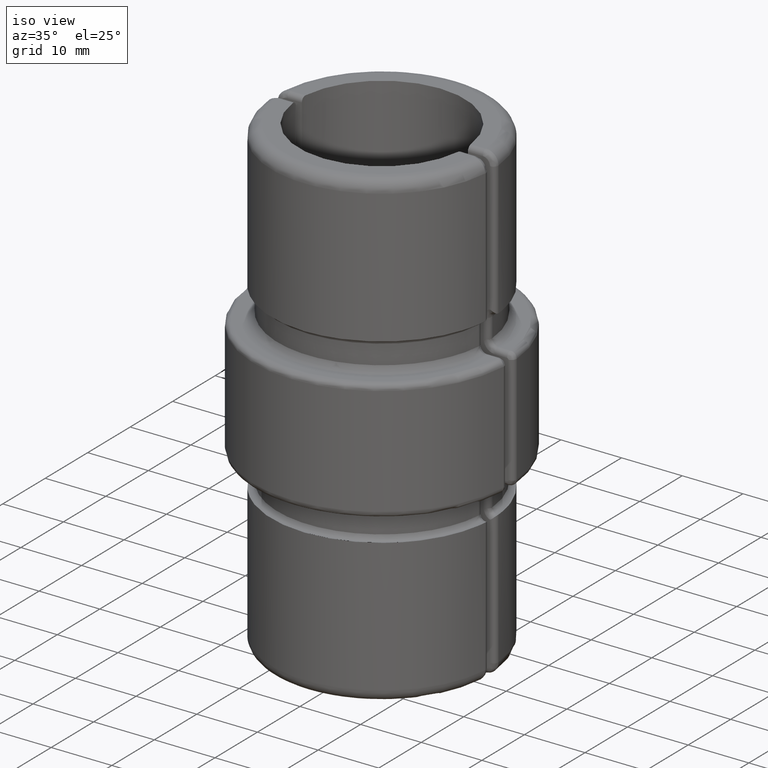
[diagram: clean part render]
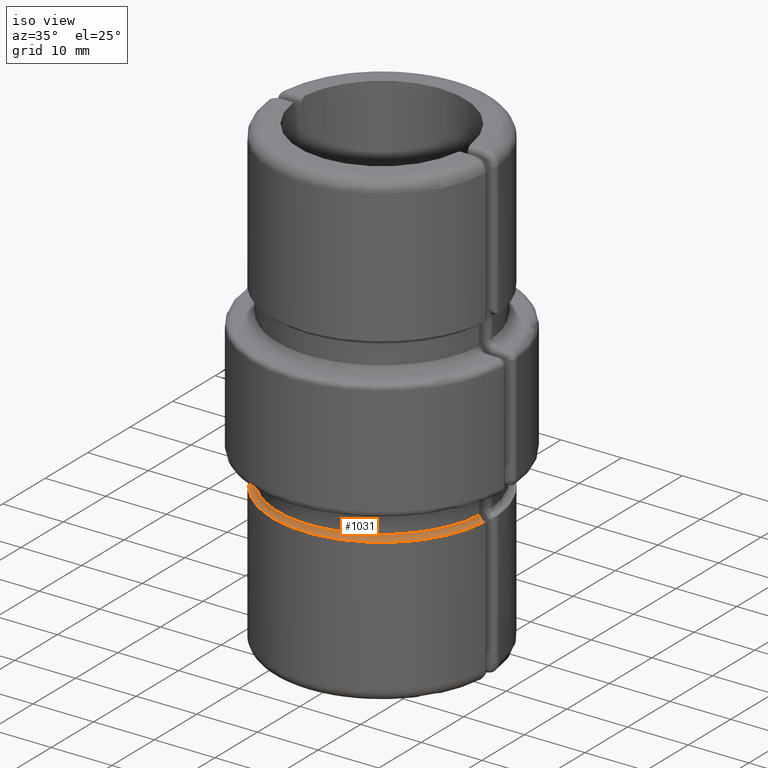
[diagram: same view with one face highlighted and labeled with its STEP entity id]
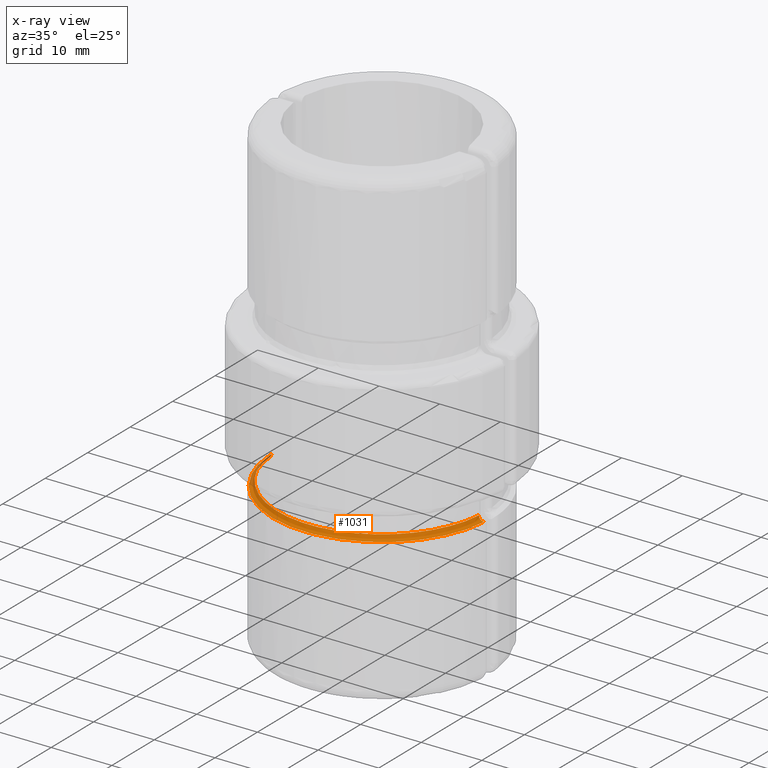
[diagram: x-ray of the same camera — body ghosted, the highlighted face saturated]
A machine part, iso view. The second image highlights one B-rep face of the part: STEP entity #1031.
The next image is the same camera in x-ray: the body ghosted, the highlighted face saturated — about 5% of this face is hidden behind the body in this view.
In plain terms, the highlighted face is a freeform B-spline surface patch.
Its self-contained STEP definition (entity closure, byte-faithful):
#24 = CARTESIAN_POINT ( 'NONE',  ( -2.186119393764701435, 16.39042120759988919, 14.20000000000264428 ) ) ;
#156 = CARTESIAN_POINT ( 'NONE',  ( 2.797698892995979403, 17.08551194946132767, 14.99999999999968736 ) ) ;
#188 = CARTESIAN_POINT ( 'NONE',  ( 17.14634713991119952, 0.4015273508978949857, 14.19999999999998863 ) ) ;
#190 = CARTESIAN_POINT ( 'NONE',  ( -11.91155388143587324, 12.80386593258598182, 14.99999999999976907 ) ) ;
#230 = CARTESIAN_POINT ( 'NONE',  ( 17.09337808486497323, 0.9666959567938157027, 15.00000000000594014 ) ) ;
#276 = CARTESIAN_POINT ( 'NONE',  ( 17.20448324587178845, 0.8689535761961707516, 14.60594006288016544 ) ) ;
#372 = CARTESIAN_POINT ( 'NONE',  ( 16.78599364620175294, 3.133834575316098547, 15.00000000000042455 ) ) ;
#378 = CARTESIAN_POINT ( 'NONE',  ( -16.52023213503057164, 4.132258731522709283, 14.19999999999994955 ) ) ;
#405 = CARTESIAN_POINT ( 'NONE',  ( -15.32449799384236400, 7.129808535044427131, 14.19999999999891038 ) ) ;
#428 = CARTESIAN_POINT ( 'NONE',  ( 8.556555450273290120, 15.14598135647970167, 14.99999999999972111 ) ) ;
#470 = CARTESIAN_POINT ( 'NONE',  ( -16.40967397117084658, 6.716996015802465969, 14.99999999999987210 ) ) ;
#488 = CARTESIAN_POINT ( 'NONE',  ( -4.299092598139014676, 15.95700854237848887, 14.99999999999872813 ) ) ;
#493 = CARTESIAN_POINT ( 'NONE',  ( -13.56820539807004522, 10.01473124329863396, 14.19999999999986073 ) ) ;
#520 = CARTESIAN_POINT ( 'NONE',  ( 13.72315801097559174, 10.96001334331568344, 14.99999999999980460 ) ) ;
#551 = CARTESIAN_POINT ( 'NONE',  ( -17.51837789746314300, 0.8356030271686951671, 14.90024934218197927 ) ) ;
#595 = CARTESIAN_POINT ( 'NONE',  ( 17.01851685028226413, 5.180317851213550817, 14.99999999999991473 ) ) ;
#598 = CARTESIAN_POINT ( 'NONE',  ( -17.11405182881322062, 0.8727410715271104458, 14.20000000000000462 ) ) ;
#707 = CARTESIAN_POINT ( 'NONE',  ( 12.53063669227194765, 11.12908117812669495, 14.99999999999682387 ) ) ;
#741 = CARTESIAN_POINT ( 'NONE',  ( 6.799784395693301065, 15.10678563668198038, 15.00000000000168399 ) ) ;
#783 = CARTESIAN_POINT ( 'NONE',  ( 11.56641842014843746, 12.13615826895738259, 14.19999999999986251 ) ) ;
#860 = CARTESIAN_POINT ( 'NONE',  ( 14.20239627456698628, 9.024887585884126651, 14.19999999999885532 ) ) ;
#944 = CARTESIAN_POINT ( 'NONE',  ( -3.773609744641338359, 16.08350633991344480, 14.99999999999872635 ) ) ;
#1020 = CARTESIAN_POINT ( 'NONE',  ( 0.5124115862441654956, 16.50177844989978482, 15.00000000000117240 ) ) ;
#1031 = ADVANCED_FACE ( 'NONE', ( #9348 ), #11723, .F. ) ;
#1100 = CARTESIAN_POINT ( 'NONE',  ( 17.09337808132914205, 0.9666959565700200541, 14.20000000000543672 ) ) ;
#1102 = CARTESIAN_POINT ( 'NONE',  ( -10.58792622707601083, 13.86599643077286714, 14.99999999999974776 ) ) ;
#1138 = CARTESIAN_POINT ( 'NONE',  ( 16.88597986784069604, 2.613654133635936461, 14.99999999999996625 ) ) ;
#1262 = CARTESIAN_POINT ( 'NONE',  ( 17.69968447141554080, 0.8202607291608728923, 14.99999999999997335 ) ) ;
#1289 = CARTESIAN_POINT ( 'NONE',  ( -16.72570755489611116, 3.347357000638174540, 14.99999999999992895 ) ) ;
#1310 = CARTESIAN_POINT ( 'NONE',  ( 12.57975102430243908, 12.18365899960660492, 14.99999999999977973 ) ) ;
#1328 = CARTESIAN_POINT ( 'NONE',  ( -15.78130503426616116, 6.159369707616033196, 15.00000000000134470 ) ) ;
#1362 = CARTESIAN_POINT ( 'NONE',  ( -6.046773823331497155, 16.25967573011151046, 14.99999999999970157 ) ) ;
#1379 = CARTESIAN_POINT ( 'NONE',  ( -15.32449799372191634, 7.129808534987988722, 14.99999999999842260 ) ) ;
#1403 = CARTESIAN_POINT ( 'NONE',  ( -16.62959515868484317, 6.208179372732493206, 14.99999999999989342 ) ) ;
#1413 = CARTESIAN_POINT ( 'NONE',  ( -13.26938637297817003, 10.29831339256298328, 15.00000000000080824 ) ) ;
#1446 = CARTESIAN_POINT ( 'NONE',  ( -17.05725990527734837, 1.510234071208555129, 14.20000000000047180 ) ) ;
#1449 = EDGE_CURVE ( 'NONE', #6678, #3878, #7195, .T. ) ;
#1452 = CARTESIAN_POINT ( 'NONE',  ( -9.133925785202105629, 13.98161375896850700, 14.19999999999988383 ) ) ;
#1464 = VERTEX_POINT ( 'NONE', #10388 ) ;
#1534 = CARTESIAN_POINT ( 'NONE',  ( -16.89475749996725540, 2.562224644464162093, 15.00000000000165734 ) ) ;
#1557 = CARTESIAN_POINT ( 'NONE',  ( -17.62938820938898843, 3.013770268593092716, 14.99999999999994671 ) ) ;
#1568 = CARTESIAN_POINT ( 'NONE',  ( -17.15323738375872864, 0.4168804348801515292, 14.99999999999999822 ) ) ;
#1575 = CARTESIAN_POINT ( 'NONE',  ( 16.88527864714517079, 2.829721671739519273, 14.19999999999986962 ) ) ;
#1665 = CARTESIAN_POINT ( 'NONE',  ( 15.30276213299846866, 7.170287446967848588, 14.19999999999940776 ) ) ;
#1697 = CARTESIAN_POINT ( 'NONE',  ( 9.199499041160636992, 13.93978840310646028, 14.19999999999986073 ) ) ;
#1701 = CARTESIAN_POINT ( 'NONE',  ( 10.08945704238006336, 13.27022977084178912, 15.00000000000266454 ) ) ;
#1732 = CARTESIAN_POINT ( 'NONE',  ( 16.49748049387561366, 6.505261563743949260, 14.99999999999987743 ) ) ;
#1777 = CARTESIAN_POINT ( 'NONE',  ( 10.94124920754001451, 12.61366406221141823, 15.00000000000274269 ) ) ;
#1890 = CARTESIAN_POINT ( 'NONE',  ( 5.291495714129182737, 15.69715076644344620, 14.99999999999579892 ) ) ;
#1977 = CARTESIAN_POINT ( 'NONE',  ( 4.455812532683085081, 16.76918552660013972, 14.99999999999969269 ) ) ;
#1991 = B_SPLINE_CURVE_WITH_KNOTS ( 'NONE', 3,
 ( #5716, #5653, #6754, #3254, #551, #8716, #11407, #9641 ),
 .UNSPECIFIED., .F., .F.,
 ( 4, 2, 2, 4 ),
 ( 6.939740885162003740E-18, 0.0006352124008917113367, 0.0009528186013375652703, 0.001270424801783419421 ),
 .UNSPECIFIED. ) ;
#2005 = CARTESIAN_POINT ( 'NONE',  ( -15.77506881130950234, 7.989598758018325420, 14.99999999999985612 ) ) ;
#2116 = CARTESIAN_POINT ( 'NONE',  ( 17.27399042555000719, 4.392450557974382441, 14.99999999999992362 ) ) ;
#2161 = CARTESIAN_POINT ( 'NONE',  ( 17.26547971631715228, 0.8628695921828202220, 14.69471426096094113 ) ) ;
#2201 = CARTESIAN_POINT ( 'NONE',  ( -8.309324767329096417, 14.39865068057011044, 14.99999999999682210 ) ) ;
#2229 = CARTESIAN_POINT ( 'NONE',  ( 16.39820026228137095, 6.730537346596126902, 14.99999999999988631 ) ) ;
#2236 = CARTESIAN_POINT ( 'NONE',  ( 16.78599364695827845, 3.133834575514333309, 14.20000000000045581 ) ) ;
#2244 = CARTESIAN_POINT ( 'NONE',  ( -3.773609744650473719, 16.08350633995976153, 14.19999999999824780 ) ) ;
#2264 = CARTESIAN_POINT ( 'NONE',  ( -14.75959049441173754, 9.620848120455493202, 14.99999999999982947 ) ) ;
#2277 = CARTESIAN_POINT ( 'NONE',  ( -7.696736486904561581, 15.61014819430868883, 14.99999999999971756 ) ) ;
#2310 = CARTESIAN_POINT ( 'NONE',  ( -16.51566049715859208, 6.477700130506208076, 14.99999999999988454 ) ) ;
#2345 = CARTESIAN_POINT ( 'NONE',  ( 5.478397994163009876, 16.47794314806693805, 14.99999999999971045 ) ) ;
#2404 = CARTESIAN_POINT ( 'NONE',  ( -16.78708442093113362, 3.085686202975753467, 14.99999999999823252 ) ) ;
#2430 = CARTESIAN_POINT ( 'NONE',  ( -17.50428404250768466, 3.560765049629377454, 14.99999999999993605 ) ) ;
#2440 = CARTESIAN_POINT ( 'NONE',  ( -17.11405182881322062, 0.8727410715271104458, 14.20000000000000462 ) ) ;
#2532 = CARTESIAN_POINT ( 'NONE',  ( -17.05725990750545407, 1.510234071536817879, 15.00000000000142464 ) ) ;
#2573 = CARTESIAN_POINT ( 'NONE',  ( 16.39028066182577348, 4.701058752631934290, 14.19999999999987317 ) ) ;
#2576 = CARTESIAN_POINT ( 'NONE',  ( 8.261530686295596837, 14.39558904831732100, 14.20000000000170282 ) ) ;
#2644 = CARTESIAN_POINT ( 'NONE',  ( 6.424366977651605914, 15.36052792733488914, 14.19999999999985718 ) ) ;
#2652 = CARTESIAN_POINT ( 'NONE',  ( 14.49937108038230349, 8.578182110336864952, 15.00000000000033928 ) ) ;
#2686 = CARTESIAN_POINT ( 'NONE',  ( 10.08945704234904639, 13.27022977079212573, 14.20000000000072937 ) ) ;
#2722 = CARTESIAN_POINT ( 'NONE',  ( 5.291495713981562155, 15.69715076606656368, 14.19999999999679119 ) ) ;
#2770 = CARTESIAN_POINT ( 'NONE',  ( 1.106374744658006115, 17.27461498980114740, 14.99999999999968914 ) ) ;
#2813 = CARTESIAN_POINT ( 'NONE',  ( 17.83344832697972038, 1.613960513095480831, 14.99999999999997335 ) ) ;
#2815 = CARTESIAN_POINT ( 'NONE',  ( 4.258223538346327608, 15.99245262413596969, 15.00000000000165556 ) ) ;
#2833 = B_SPLINE_CURVE_WITH_KNOTS ( 'NONE', 3,
 ( #2440, #5950, #11467, #3198, #9578, #493, #6910, #1452, #7822, #9712, #8789, #9924, #2644, #1697, #783, #9796, #3557, #2573, #1575, #6276, #5225 ),
 .UNSPECIFIED., .F., .F.,
 ( 4, 1, 1, 1, 1, 1, 1, 1, 1, 1, 1, 1, 1, 1, 1, 1, 1, 1, 4 ),
 ( 0.0008737977590386582574, 0.002280440958247524630, 0.004843289370382106683, 0.007719393953139861049, 0.01090866391328768753, 0.01369387403847492635, 0.01665695327040941573, 0.01977589991768124653, 0.02300932788023394779, 0.02629866334145244261, 0.02958799884242826334, 0.03282142679725565115, 0.03594037345218119989, 0.03890345269025875796, 0.04168866279683513393, 0.04487793275437345492, 0.04775403733688664970, 0.05032343480342978820, 0.05179658130846237496 ),
 .UNSPECIFIED. ) ;
#2925 = CARTESIAN_POINT ( 'NONE',  ( -16.35639656798797148, 4.649973712935758563, 14.20000000000040075 ) ) ;
#3012 = EDGE_LOOP ( 'NONE', ( #11007, #9034, #10145, #5302 ) ) ;
#3080 = CARTESIAN_POINT ( 'NONE',  ( 17.10031338063514283, 0.8793898218310144399, 14.30669482180948293 ) ) ;
#3112 = CARTESIAN_POINT ( 'NONE',  ( -12.55761154186309803, 11.10106120398137008, 14.99999999999491429 ) ) ;
#3131 = CARTESIAN_POINT ( 'NONE',  ( 2.219704428735055135, 17.16838858683259872, 14.99999999999968736 ) ) ;
#3142 = CARTESIAN_POINT ( 'NONE',  ( -13.26938637280250788, 10.29831339243667543, 14.19999999999983764 ) ) ;
#3178 = CARTESIAN_POINT ( 'NONE',  ( 7.040233423210517039, 15.87409678446038974, 14.99999999999971401 ) ) ;
#3194 = CARTESIAN_POINT ( 'NONE',  ( -16.73100169759605294, 5.959251804828467947, 14.99999999999989164 ) ) ;
#3198 = CARTESIAN_POINT ( 'NONE',  ( -16.34216686767959459, 4.877511404024811981, 14.19999999999983942 ) ) ;
#3218 = CARTESIAN_POINT ( 'NONE',  ( -11.35919685203397478, 13.27177707405902041, 14.99999999999976552 ) ) ;
#3235 = CARTESIAN_POINT ( 'NONE',  ( -10.11670949441435674, 13.21902105995221000, 14.19999999999780549 ) ) ;
#3254 = CARTESIAN_POINT ( 'NONE',  ( -17.42871241306880847, 0.8437013693423197624, 14.84150272693304728 ) ) ;
#3263 = CARTESIAN_POINT ( 'NONE',  ( -4.436623693035572025, 16.74773128716963200, 14.99999999999969980 ) ) ;
#3298 = CARTESIAN_POINT ( 'NONE',  ( 15.91022804667686863, 7.739114531683246589, 14.99999999999986500 ) ) ;
#3436 = CARTESIAN_POINT ( 'NONE',  ( -17.10804511394200844, 0.9697065551753289991, 14.19999999999465246 ) ) ;
#3557 = CARTESIAN_POINT ( 'NONE',  ( 15.23534324757435954, 7.498150152843277461, 14.19999999999985363 ) ) ;
#3563 = CARTESIAN_POINT ( 'NONE',  ( 12.53063669234721367, 11.12908117820732734, 14.19999999999683560 ) ) ;
#3602 = CARTESIAN_POINT ( 'NONE',  ( 15.97178752348715847, 5.686028095404761729, 14.99999999999746159 ) ) ;
#3644 = CARTESIAN_POINT ( 'NONE',  ( 0.5373073071543862378, 17.30182692706148373, 14.99999999999967848 ) ) ;
#3678 = CARTESIAN_POINT ( 'NONE',  ( 0.5124115862437007562, 16.50177845014584221, 14.20000000000118412 ) ) ;
#3758 = CARTESIAN_POINT ( 'NONE',  ( 17.03797053755907243, 1.525973422684962610, 14.99999999999996625 ) ) ;
#3799 = CARTESIAN_POINT ( 'NONE',  ( 1.055439494362746977, 16.47583313282195050, 14.20000000000069740 ) ) ;
#3838 = CARTESIAN_POINT ( 'NONE',  ( -5.342021873405283117, 15.65393250894459420, 15.00000000000069811 ) ) ;
#3866 = CARTESIAN_POINT ( 'NONE',  ( 17.94285655031948679, 0.4761782660365935782, 14.99999999999999289 ) ) ;
#3878 = VERTEX_POINT ( 'NONE', #7999 ) ;
#3947 = CARTESIAN_POINT ( 'NONE',  ( 17.10088912159590890, 4.927688366258849761, 14.99999999999991296 ) ) ;
#4016 = CARTESIAN_POINT ( 'NONE',  ( 16.34372481282306211, 4.669090806274624583, 14.99999999999992184 ) ) ;
#4022 = CARTESIAN_POINT ( 'NONE',  ( -15.20043407219523246, 8.960361008601113397, 14.99999999999983835 ) ) ;
#4050 = CARTESIAN_POINT ( 'NONE',  ( 1.101154415178764223, 17.27472956049273378, 14.99999999999968558 ) ) ;
#4059 = CARTESIAN_POINT ( 'NONE',  ( 17.35389535975642517, 4.122608092321986994, 14.99999999999992717 ) ) ;
#4066 = CARTESIAN_POINT ( 'NONE',  ( -15.07373170933754025, 7.603893764485966322, 14.99999999999593747 ) ) ;
#4092 = CARTESIAN_POINT ( 'NONE',  ( -7.601820379189837773, 15.65356879903696807, 14.99999999999971578 ) ) ;
#4101 = CARTESIAN_POINT ( 'NONE',  ( -6.126395944971201324, 16.23147994330394539, 14.99999999999970690 ) ) ;
#4125 = CARTESIAN_POINT ( 'NONE',  ( -17.20099061139178787, 4.641131478507447561, 14.99999999999991829 ) ) ;
#4135 = CARTESIAN_POINT ( 'NONE',  ( -7.355337960486801663, 14.88488331892326322, 14.19999999999777351 ) ) ;
#4170 = CARTESIAN_POINT ( 'NONE',  ( -11.78596403823780214, 12.91331219515745055, 14.99999999999976730 ) ) ;
#4213 = CARTESIAN_POINT ( 'NONE',  ( 7.556541508596239076, 15.64586423188427844, 14.99999999999971045 ) ) ;
#4230 = CARTESIAN_POINT ( 'NONE',  ( -17.73011609264399979, 2.431990213410421653, 14.99999999999995559 ) ) ;
#4265 = CARTESIAN_POINT ( 'NONE',  ( -17.68132818720020794, 2.708937734109181594, 14.99999999999994671 ) ) ;
#4361 = CARTESIAN_POINT ( 'NONE',  ( 13.86261002610805093, 10.83607155136855127, 14.99999999999979927 ) ) ;
#4389 = EDGE_CURVE ( 'NONE', #6678, #1464, #6361, .T. ) ;
#4404 = CARTESIAN_POINT ( 'NONE',  ( 6.799784395767102474, 15.10678563687038434, 14.20000000000120544 ) ) ;
#4508 = CARTESIAN_POINT ( 'NONE',  ( 8.729011262051043829, 14.13000157686679792, 14.99999999999828049 ) ) ;
#4671 = CARTESIAN_POINT ( 'NONE',  ( 5.535731322771439089, 16.46065255736003508, 14.99999999999970335 ) ) ;
#4699 = CARTESIAN_POINT ( 'NONE',  ( -15.98739823030363461, 5.663253793316315843, 14.99999999999942091 ) ) ;
#4735 = CARTESIAN_POINT ( 'NONE',  ( -14.88683714571122607, 9.436969217992276171, 14.99999999999982947 ) ) ;
#4882 = CARTESIAN_POINT ( 'NONE',  ( 16.88597987089600849, 2.613654134062865619, 14.19999999999998330 ) ) ;
#4929 = CARTESIAN_POINT ( 'NONE',  ( -5.589085123397533827, 16.41523071330936645, 14.99999999999970335 ) ) ;
#4962 = CARTESIAN_POINT ( 'NONE',  ( -11.48314803514671745, 13.17025456822939944, 14.99999999999976197 ) ) ;
#5008 = CARTESIAN_POINT ( 'NONE',  ( -17.11620850041206765, 4.901462811843993350, 14.99999999999991296 ) ) ;
#5055 = CARTESIAN_POINT ( 'NONE',  ( -17.85282586922851422, 1.598940333439227368, 14.99999999999997158 ) ) ;
#5087 = CARTESIAN_POINT ( 'NONE',  ( -15.07575563806421748, 9.153431727383136263, 14.99999999999984013 ) ) ;
#5126 = CARTESIAN_POINT ( 'NONE',  ( -17.95057763178969168, 0.4820611749028937965, 14.99999999999999822 ) ) ;
#5225 = CARTESIAN_POINT ( 'NONE',  ( 17.10031338063511797, 0.8793898218311961834, 14.19999999999998863 ) ) ;
#5231 = CARTESIAN_POINT ( 'NONE',  ( 7.297896590150247498, 14.88371806523107566, 14.19999999999777884 ) ) ;
#5263 = CARTESIAN_POINT ( 'NONE',  ( 11.45063206715300019, 13.23257514437067783, 14.99999999999975842 ) ) ;
#5302 = ORIENTED_EDGE ( 'NONE', *, *, #11073, .T. ) ;
#5307 = CARTESIAN_POINT ( 'NONE',  ( 15.97178752333614682, 5.686028095348435230, 14.19999999999847162 ) ) ;
#5345 = CARTESIAN_POINT ( 'NONE',  ( 15.04961674502188451, 7.651837276460931037, 14.99999999999935696 ) ) ;
#5387 = CARTESIAN_POINT ( 'NONE',  ( 15.04961674515032932, 7.651837276537214905, 14.19999999999986073 ) ) ;
#5421 = CARTESIAN_POINT ( 'NONE',  ( -1.114934355687235756, 16.49870304803717502, 14.99999999999673150 ) ) ;
#5582 = CARTESIAN_POINT ( 'NONE',  ( 17.03797053450372800, 1.525973422257998591, 14.19999999999998330 ) ) ;
#5631 = CARTESIAN_POINT ( 'NONE',  ( -14.52491188247929621, 8.531045455956675738, 14.20000000000230500 ) ) ;
#5653 = CARTESIAN_POINT ( 'NONE',  ( -17.11405182881324549, 0.8727410715269425800, 14.41303839174019785 ) ) ;
#5716 = CARTESIAN_POINT ( 'NONE',  ( -17.11405182881322062, 0.8727410715271104458, 14.20000000000000462 ) ) ;
#5814 = CARTESIAN_POINT ( 'NONE',  ( 16.50879031155583121, 4.158700106595678569, 14.99999999999992184 ) ) ;
#5819 = CARTESIAN_POINT ( 'NONE',  ( -8.695787377303316745, 15.10094212756946774, 14.99999999999972999 ) ) ;
#5824 = CARTESIAN_POINT ( 'NONE',  ( 17.10031338063511797, 0.8793898218311961834, 14.19999999999998863 ) ) ;
#5854 = CARTESIAN_POINT ( 'NONE',  ( -14.22533469291640706, 8.986350063719921621, 14.99999999999933564 ) ) ;
#5883 = CARTESIAN_POINT ( 'NONE',  ( -2.254389432499382728, 17.18892353795546413, 14.99999999999969091 ) ) ;
#5896 = CARTESIAN_POINT ( 'NONE',  ( -10.12227932214897486, 14.19401999688828120, 14.99999999999974598 ) ) ;
#5931 = CARTESIAN_POINT ( 'NONE',  ( -15.92341161167073338, 7.713303091513075138, 14.99999999999985967 ) ) ;
#5946 = CARTESIAN_POINT ( 'NONE',  ( -14.52491188242483489, 8.531045455924544996, 15.00000000000376765 ) ) ;
#5950 = CARTESIAN_POINT ( 'NONE',  ( -17.07134708550753999, 1.340458614536241599, 14.19999999999985185 ) ) ;
#5971 = CARTESIAN_POINT ( 'NONE',  ( 15.05826472703889607, 9.186815361500169530, 14.99999999999982947 ) ) ;
#5983 = CARTESIAN_POINT ( 'NONE',  ( -16.94070967241333747, 2.301468171926301931, 14.99999999999923261 ) ) ;
#6060 = CARTESIAN_POINT ( 'NONE',  ( 15.64049120830750894, 8.234979119378181167, 14.99999999999984901 ) ) ;
#6144 = CARTESIAN_POINT ( 'NONE',  ( -16.89475750016821820, 2.562224644505627591, 14.20000000000094609 ) ) ;
#6151 = EDGE_CURVE ( 'NONE', #9062, #3878, #2833, .T. ) ;
#6154 = CARTESIAN_POINT ( 'NONE',  ( 7.115051954357344499, 15.84248453617927233, 14.99999999999971401 ) ) ;
#6205 = CARTESIAN_POINT ( 'NONE',  ( 7.636728639371835214, 15.60886553193645554, 14.99999999999971223 ) ) ;
#6276 = CARTESIAN_POINT ( 'NONE',  ( 17.04725157060847351, 1.411446803594741395, 14.19999999999984830 ) ) ;
#6360 = CARTESIAN_POINT ( 'NONE',  ( 2.671619123892759795, 16.29513688363507740, 14.19999999999873630 ) ) ;
#6361 = B_SPLINE_CURVE_WITH_KNOTS ( 'NONE', 3,
 ( #6932, #8653, #7810, #11449, #10619, #7681, #595, #9529, #2229, #3298, #6060, #5971, #8691, #11536, #520, #10491, #1310, #10536, #7768, #6889, #428, #4213, #3178, #2345, #8725, #8611, #3131, #4050, #10442, #11382, #5883, #6802, #3263, #11413, #1362, #4092, #9653, #7717, #9560, #3218, #4170, #6841, #10572, #2264, #5087, #11494, #5931, #470, #1403, #9606, #4125, #2430, #1557, #11614, #11652, #10704 ),
 .UNSPECIFIED., .F., .F.,
 ( 4, 2, 2, 2, 2, 2, 2, 2, 2, 2, 2, 2, 2, 2, 2, 2, 2, 2, 2, 2, 2, 2, 2, 2, 2, 2, 2, 4 ),
 ( 0.0008034357324876710170, 0.002497858366313837706, 0.004192281000140005154, 0.005886703633966173035, 0.007581126267792340917, 0.009275548901618507064, 0.01096997153544467321, 0.01266439416927083762, 0.01435881680309700204, 0.01774766207074933433, 0.01944208470457550048, 0.02113650733840165621, 0.02452535260605397463, 0.02621977523988013037, 0.02791419787370628958, 0.03130304314135860799, 0.03299746577518476026, 0.03469188840901091253, 0.03808073367666322401, 0.03977515631048937628, 0.04146957894431552855, 0.04485842421196784696, 0.04655284684579399923, 0.04824726947962015844, 0.04994169211344632459, 0.05163611474727248379, 0.05333053738109864300, 0.05502496001492480221 ),
 .UNSPECIFIED. ) ;
#6406 = CARTESIAN_POINT ( 'NONE',  ( -3.949304349109547640, 16.86435266824393509, 14.99999999999969269 ) ) ;
#6434 = CARTESIAN_POINT ( 'NONE',  ( 17.14634713991119597, 0.4015273508979091965, 14.99999999999999467 ) ) ;
#6555 = CARTESIAN_POINT ( 'NONE',  ( -10.97253622184492983, 12.55389597436321303, 14.20000000000173834 ) ) ;
#6584 = CARTESIAN_POINT ( 'NONE',  ( 17.67510575957721386, 2.747096882368801118, 14.99999999999995204 ) ) ;
#6678 = VERTEX_POINT ( 'NONE', #9007 ) ;
#6701 = CARTESIAN_POINT ( 'NONE',  ( 17.91199442179841128, 0.7999999999999840572, 14.99999999999998046 ) ) ;
#6734 = CARTESIAN_POINT ( 'NONE',  ( -17.50307147063358215, 3.536804132824945324, 14.99999999999993072 ) ) ;
#6742 = CARTESIAN_POINT ( 'NONE',  ( 17.49087657547841346, 0.8406002143358676237, 14.91491949814110640 ) ) ;
#6754 = CARTESIAN_POINT ( 'NONE',  ( -17.20374549547792853, 0.8642470684646613721, 14.62113978324033958 ) ) ;
#6777 = CARTESIAN_POINT ( 'NONE',  ( -7.355337960538308906, 14.88488331905370998, 14.99999999999777067 ) ) ;
#6802 = CARTESIAN_POINT ( 'NONE',  ( -3.893836305972772749, 16.87653059626641650, 14.99999999999970157 ) ) ;
#6817 = CARTESIAN_POINT ( 'NONE',  ( -5.342021873451878733, 15.65393250910505962, 14.20000000000070095 ) ) ;
#6841 = CARTESIAN_POINT ( 'NONE',  ( -13.01169984571667015, 11.78530472795003092, 14.99999999999978506 ) ) ;
#6853 = CARTESIAN_POINT ( 'NONE',  ( -4.299092598092416395, 15.95700854221798792, 14.19999999999873097 ) ) ;
#6889 = CARTESIAN_POINT ( 'NONE',  ( 9.041835183962890099, 14.87402476817165287, 14.99999999999973355 ) ) ;
#6910 = CARTESIAN_POINT ( 'NONE',  ( -11.50928031455421063, 12.18559213759045434, 14.19999999999982343 ) ) ;
#6932 = CARTESIAN_POINT ( 'NONE',  ( 17.91199442179841128, 0.7999999999999840572, 14.99999999999998046 ) ) ;
#6982 = CARTESIAN_POINT ( 'NONE',  ( -17.56770317442144957, 3.261335109982564262, 14.99999999999993783 ) ) ;
#7082 = CARTESIAN_POINT ( 'NONE',  ( 8.261530686348157460, 14.39558904842061615, 15.00000000000169109 ) ) ;
#7153 = CARTESIAN_POINT ( 'NONE',  ( 14.49937108025383914, 8.578182110260543780, 14.19999999999986073 ) ) ;
#7195 = B_SPLINE_CURVE_WITH_KNOTS ( 'NONE', 3,
 ( #6701, #1262, #6742, #2161, #276, #9392, #3080, #5824 ),
 .UNSPECIFIED., .F., .F.,
 ( 4, 2, 2, 4 ),
 ( 6.980275126496363357E-18, 0.0006358915231490942224, 0.0009538372847236378099, 0.001271783046298181506 ),
 .UNSPECIFIED. ) ;
#7241 = CARTESIAN_POINT ( 'NONE',  ( 13.11341689444931191, 11.67943475653862606, 14.99999999999978684 ) ) ;
#7663 = CARTESIAN_POINT ( 'NONE',  ( -5.855597641993770530, 15.47828089772885996, 14.20000000000070273 ) ) ;
#7681 = CARTESIAN_POINT ( 'NONE',  ( 17.19986619502970981, 4.655071899313877992, 14.99999999999991829 ) ) ;
#7693 = CARTESIAN_POINT ( 'NONE',  ( -15.98739823035676899, 5.663253793335894848, 14.19999999999942730 ) ) ;
#7717 = CARTESIAN_POINT ( 'NONE',  ( -10.00648052322624615, 14.27196239081616724, 14.99999999999975131 ) ) ;
#7735 = CARTESIAN_POINT ( 'NONE',  ( -15.78130503414570995, 6.159369707559562812, 14.20000000000085549 ) ) ;
#7768 = CARTESIAN_POINT ( 'NONE',  ( 10.45462860140178130, 13.99380760393762202, 14.99999999999974953 ) ) ;
#7782 = CARTESIAN_POINT ( 'NONE',  ( -13.88608620294902174, 10.81042059692163271, 14.99999999999980282 ) ) ;
#7810 = CARTESIAN_POINT ( 'NONE',  ( 17.79713237258527769, 1.925294403569708157, 14.99999999999996625 ) ) ;
#7819 = CARTESIAN_POINT ( 'NONE',  ( -17.90490200628042672, 1.040800139803625290, 14.99999999999998757 ) ) ;
#7822 = CARTESIAN_POINT ( 'NONE',  ( -6.352347767468621065, 15.38853061813685486, 14.19999999999984119 ) ) ;
#7861 = CARTESIAN_POINT ( 'NONE',  ( -16.94070967352736190, 2.301468172090407105, 14.19999999999973994 ) ) ;
#7999 = CARTESIAN_POINT ( 'NONE',  ( 17.10031338063511797, 0.8793898218311961834, 14.19999999999998863 ) ) ;
#8079 = CARTESIAN_POINT ( 'NONE',  ( 16.01726678302027906, 7.530898994151040249, 14.99999999999986144 ) ) ;
#8117 = CARTESIAN_POINT ( 'NONE',  ( 15.17345819816440944, 9.009840002812733672, 14.99999999999983302 ) ) ;
#8135 = CARTESIAN_POINT ( 'NONE',  ( 16.25440198562889904, 4.924851241792578271, 15.00000000000112443 ) ) ;
#8151 = CARTESIAN_POINT ( 'NONE',  ( 10.94124920746473428, 12.61366406213074320, 14.20000000000275442 ) ) ;
#8240 = CARTESIAN_POINT ( 'NONE',  ( 2.238534724132683174, 17.16620845922540894, 14.99999999999969269 ) ) ;
#8273 = CARTESIAN_POINT ( 'NONE',  ( 17.88952643421786703, 1.045199317432987662, 14.99999999999998224 ) ) ;
#8397 = CARTESIAN_POINT ( 'NONE',  ( -15.07373170928307360, 7.603893764453798276, 14.19999999999741291 ) ) ;
#8473 = CARTESIAN_POINT ( 'NONE',  ( 16.58422262956040782, 3.903797660924847701, 14.99999999999969091 ) ) ;
#8583 = CARTESIAN_POINT ( 'NONE',  ( -8.309324767323035488, 14.39865068056098529, 14.19999999999683915 ) ) ;
#8611 = CARTESIAN_POINT ( 'NONE',  ( 2.772226668187519394, 17.08934948384364105, 14.99999999999969447 ) ) ;
#8626 = CARTESIAN_POINT ( 'NONE',  ( -11.38224988425106510, 12.20349471000696440, 14.20000000000173124 ) ) ;
#8653 = CARTESIAN_POINT ( 'NONE',  ( 17.85733094918571950, 1.362182166465897737, 14.99999999999998579 ) ) ;
#8666 = CARTESIAN_POINT ( 'NONE',  ( -11.38224988424781614, 12.20349471000305996, 15.00000000000222578 ) ) ;
#8691 = CARTESIAN_POINT ( 'NONE',  ( 14.74499870794671352, 9.645796423240906137, 14.99999999999982414 ) ) ;
#8701 = CARTESIAN_POINT ( 'NONE',  ( -9.671687294274416757, 13.53250017044079634, 14.20000000000123563 ) ) ;
#8716 = CARTESIAN_POINT ( 'NONE',  ( -17.71357220747688643, 0.8182644598023390836, 14.97955675749424209 ) ) ;
#8725 = CARTESIAN_POINT ( 'NONE',  ( 4.410864027787216202, 16.77971726473422720, 14.99999999999969980 ) ) ;
#8741 = CARTESIAN_POINT ( 'NONE',  ( -16.78708442073012819, 3.085686202934248001, 14.19999999999899032 ) ) ;
#8789 = CARTESIAN_POINT ( 'NONE',  ( 0.03871444328211969682, 16.61092540465376644, 14.19999999999986073 ) ) ;
#8911 = CARTESIAN_POINT ( 'NONE',  ( 15.30276213239497629, 7.170287446685054356, 14.99999999999889511 ) ) ;
#8955 = CARTESIAN_POINT ( 'NONE',  ( 7.297896590097693981, 14.88371806512782314, 14.99999999999776712 ) ) ;
#8989 = CARTESIAN_POINT ( 'NONE',  ( 15.76295028085104732, 6.187420486535921249, 15.00000000000085620 ) ) ;
#9007 = CARTESIAN_POINT ( 'NONE',  ( 17.91199442179841128, 0.7999999999999840572, 14.99999999999998046 ) ) ;
#9022 = CARTESIAN_POINT ( 'NONE',  ( 13.24847202647120881, 10.32088119049116592, 15.00000000000177636 ) ) ;
#9034 = ORIENTED_EDGE ( 'NONE', *, *, #1449, .T. ) ;
#9062 = VERTEX_POINT ( 'NONE', #598 ) ;
#9068 = CARTESIAN_POINT ( 'NONE',  ( 14.86175682705694356, 9.478638959414837473, 14.99999999999982592 ) ) ;
#9112 = CARTESIAN_POINT ( 'NONE',  ( 4.258223538294505062, 15.99245262386430788, 14.20000000000166374 ) ) ;
#9190 = CARTESIAN_POINT ( 'NONE',  ( 2.671619123866850742, 16.29513688349928202, 14.99999999999872635 ) ) ;
#9269 = CARTESIAN_POINT ( 'NONE',  ( 2.136964370717262973, 16.37227501205838465, 14.99999999999871747 ) ) ;
#9305 = CARTESIAN_POINT ( 'NONE',  ( -17.28726583326903921, 4.361166573855498996, 14.99999999999991473 ) ) ;
#9348 = FACE_OUTER_BOUND ( 'NONE', #3012, .T. ) ;
#9380 = CARTESIAN_POINT ( 'NONE',  ( 16.58422262918209711, 3.903797660825695903, 14.19999999999972218 ) ) ;
#9392 = CARTESIAN_POINT ( 'NONE',  ( 17.12188469671239943, 0.8772171456848963933, 14.41134909180422952 ) ) ;
#9412 = CARTESIAN_POINT ( 'NONE',  ( 16.50879031253935381, 4.158700106913866712, 14.19999999999970974 ) ) ;
#9423 = CARTESIAN_POINT ( 'NONE',  ( 16.71427738820097630, 5.984643671065679627, 14.99999999999988631 ) ) ;
#9501 = CARTESIAN_POINT ( 'NONE',  ( -12.55761154185660899, 11.10106120397352747, 14.19999999999588347 ) ) ;
#9529 = CARTESIAN_POINT ( 'NONE',  ( 16.61850249133702917, 6.218324469117774811, 14.99999999999990052 ) ) ;
#9541 = CARTESIAN_POINT ( 'NONE',  ( -5.855597641968020461, 15.47828089766366766, 15.00000000000069988 ) ) ;
#9560 = CARTESIAN_POINT ( 'NONE',  ( -10.46797979829605474, 13.95237282225777342, 14.99999999999975309 ) ) ;
#9572 = CARTESIAN_POINT ( 'NONE',  ( -10.11670949432077116, 13.21902105983201814, 14.99999999999681499 ) ) ;
#9578 = CARTESIAN_POINT ( 'NONE',  ( -15.20577924389124114, 7.534230278514274737, 14.19999999999983054 ) ) ;
#9606 = CARTESIAN_POINT ( 'NONE',  ( -17.02486935372622412, 5.170070629832609121, 14.99999999999990408 ) ) ;
#9620 = CARTESIAN_POINT ( 'NONE',  ( -16.03777776384683662, 7.492912064969836194, 14.99999999999986677 ) ) ;
#9641 = CARTESIAN_POINT ( 'NONE',  ( -17.92374260307137490, 0.7999999999999773959, 14.99999999999998224 ) ) ;
#9653 = CARTESIAN_POINT ( 'NONE',  ( -8.591768892154989956, 15.15668382035596906, 14.99999999999973177 ) ) ;
#9695 = CARTESIAN_POINT ( 'NONE',  ( 16.25440198570435513, 4.924851241820702441, 14.20000000000066720 ) ) ;
#9712 = CARTESIAN_POINT ( 'NONE',  ( -3.236509110125401989, 16.28971485916783024, 14.19999999999986784 ) ) ;
#9796 = CARTESIAN_POINT ( 'NONE',  ( 13.61766674381589581, 9.946240515110011060, 14.19999999999984297 ) ) ;
#9829 = CARTESIAN_POINT ( 'NONE',  ( 17.00811964731423842, 5.193226541967390197, 14.99999999999990230 ) ) ;
#9845 = CARTESIAN_POINT ( 'NONE',  ( 14.20239627437229579, 9.024887585740348328, 14.99999999999885247 ) ) ;
#9880 = CARTESIAN_POINT ( 'NONE',  ( 10.55935830268658115, 13.91963113116229245, 14.99999999999973710 ) ) ;
#9924 = CARTESIAN_POINT ( 'NONE',  ( 3.312429241388013867, 16.27476859176384139, 14.19999999999986429 ) ) ;
#9928 = CARTESIAN_POINT ( 'NONE',  ( 15.75114828822853497, 8.037292166616341049, 14.99999999999985079 ) ) ;
#10002 = CARTESIAN_POINT ( 'NONE',  ( 9.135141569241298498, 14.81970477671426067, 14.99999999999972111 ) ) ;
#10034 = CARTESIAN_POINT ( 'NONE',  ( -2.186119393782976594, 16.39042120769259370, 15.00000000000165556 ) ) ;
#10145 = ORIENTED_EDGE ( 'NONE', *, *, #6151, .F. ) ;
#10190 = CARTESIAN_POINT ( 'NONE',  ( -1.114934355686306056, 16.49870304754498562, 14.19999999999674323 ) ) ;
#10229 = CARTESIAN_POINT ( 'NONE',  ( -10.97253622193852074, 12.55389597448344396, 15.00000000000271605 ) ) ;
#10337 = CARTESIAN_POINT ( 'NONE',  ( 16.34372481183947912, 4.669090805956385815, 14.20000000000019824 ) ) ;
#10388 = CARTESIAN_POINT ( 'NONE',  ( -17.92374260307137490, 0.7999999999999773959, 14.99999999999998224 ) ) ;
#10415 = CARTESIAN_POINT ( 'NONE',  ( -14.22533469300422659, 8.986350063783048014, 14.19999999999983764 ) ) ;
#10442 = CARTESIAN_POINT ( 'NONE',  ( 0.5391388299955176544, 17.30154363716091126, 14.99999999999968203 ) ) ;
#10491 = CARTESIAN_POINT ( 'NONE',  ( 12.97517919594362468, 11.78512249724134264, 14.99999999999979217 ) ) ;
#10504 = CARTESIAN_POINT ( 'NONE',  ( -13.14088386342240256, 11.65081269714947076, 14.99999999999979039 ) ) ;
#10536 = CARTESIAN_POINT ( 'NONE',  ( 11.33960832711948541, 13.32196473606819609, 14.99999999999976197 ) ) ;
#10549 = CARTESIAN_POINT ( 'NONE',  ( -16.72570755507484463, 3.347357000685010853, 14.19999999999994955 ) ) ;
#10572 = CARTESIAN_POINT ( 'NONE',  ( -13.75633542205140358, 10.96337368672619306, 14.99999999999979750 ) ) ;
#10583 = CARTESIAN_POINT ( 'NONE',  ( -17.10804511954712837, 0.9697065555252654123, 14.99999999999221778 ) ) ;
#10619 = CARTESIAN_POINT ( 'NONE',  ( 17.50345905908764621, 3.584804037062793824, 14.99999999999993960 ) ) ;
#10704 = CARTESIAN_POINT ( 'NONE',  ( -17.92374260307137490, 0.7999999999999773959, 14.99999999999998224 ) ) ;
#10774 = CARTESIAN_POINT ( 'NONE',  ( 13.24847202608181540, 10.32088119020355776, 14.20000000000178098 ) ) ;
#10819 = CARTESIAN_POINT ( 'NONE',  ( 8.645709992619440953, 15.09776585442188512, 14.99999999999972111 ) ) ;
#10878 = CARTESIAN_POINT ( 'NONE',  ( 15.76295028024751055, 6.187420486253080831, 14.20000000000039009 ) ) ;
#10926 = CARTESIAN_POINT ( 'NONE',  ( 1.055439494339776241, 16.47583313258078519, 15.00000000000069278 ) ) ;
#10971 = CARTESIAN_POINT ( 'NONE',  ( -1.169261374652985408, 17.29860180798909042, 14.99999999999967848 ) ) ;
#11007 = ORIENTED_EDGE ( 'NONE', *, *, #4389, .F. ) ;
#11043 = CARTESIAN_POINT ( 'NONE',  ( 2.136964370694292015, 16.37227501181717670, 14.19999999999872387 ) ) ;
#11073 = EDGE_CURVE ( 'NONE', #9062, #1464, #1991, .T. ) ;
#11126 = CARTESIAN_POINT ( 'NONE',  ( -4.498519817134724263, 16.73214981326254147, 14.99999999999969624 ) ) ;
#11159 = CARTESIAN_POINT ( 'NONE',  ( -16.52023213538808832, 4.132258731616440528, 14.99999999999992895 ) ) ;
#11300 = CARTESIAN_POINT ( 'NONE',  ( 17.56825723836964315, 3.304597971910021581, 14.99999999999994138 ) ) ;
#11351 = CARTESIAN_POINT ( 'NONE',  ( -9.671687294271402280, 13.53250017043627729, 15.00000000000121858 ) ) ;
#11382 = CARTESIAN_POINT ( 'NONE',  ( -1.146749938598289997, 17.29921122670847922, 14.99999999999968558 ) ) ;
#11407 = CARTESIAN_POINT ( 'NONE',  ( -17.81766485372800091, 0.8091504284557017312, 15.00000000000016698 ) ) ;
#11413 = CARTESIAN_POINT ( 'NONE',  ( -5.514541471104561055, 16.43901218263852115, 14.99999999999970868 ) ) ;
#11424 = CARTESIAN_POINT ( 'NONE',  ( -16.35639656804112008, 4.649973712955371319, 15.00000000000039613 ) ) ;
#11449 = CARTESIAN_POINT ( 'NONE',  ( 17.62211921660769320, 3.038583185432922384, 14.99999999999993960 ) ) ;
#11467 = CARTESIAN_POINT ( 'NONE',  ( -16.92484932384070362, 2.656512095148591435, 14.19999999999986784 ) ) ;
#11494 = CARTESIAN_POINT ( 'NONE',  ( -15.65687345263351204, 8.200703024612318259, 14.99999999999985434 ) ) ;
#11536 = CARTESIAN_POINT ( 'NONE',  ( 14.07724977273139011, 10.53224588426607333, 14.99999999999980105 ) ) ;
#11614 = CARTESIAN_POINT ( 'NONE',  ( -17.81515769309008590, 1.912688751620956529, 14.99999999999996625 ) ) ;
#11628 = CARTESIAN_POINT ( 'NONE',  ( -17.15323738375872509, 0.4168804348801367077, 14.20000000000000107 ) ) ;
#11652 = CARTESIAN_POINT ( 'NONE',  ( -17.87494285084390100, 1.357170383997794438, 14.99999999999997513 ) ) ;
#11678 = CARTESIAN_POINT ( 'NONE',  ( 8.729011262066542542, 14.13000157689158875, 14.19999999999926743 ) ) ;
#11723 =( BOUNDED_SURFACE ( )  B_SPLINE_SURFACE ( 3, 2, ( 
 ( #3866, #6434, #188 ),
 ( #8273, #230, #1100 ),
 ( #2813, #3758, #5582 ),
 ( #6584, #1138, #4882 ),
 ( #11300, #372, #2236 ),
 ( #4059, #8473, #9380 ),
 ( #2116, #5814, #9412 ),
 ( #3947, #4016, #10337 ),
 ( #9829, #8135, #9695 ),
 ( #9423, #3602, #5307 ),
 ( #1732, #8989, #10878 ),
 ( #8079, #8911, #1665 ),
 ( #9928, #5345, #5387 ),
 ( #8117, #2652, #7153 ),
 ( #9068, #9845, #860 ),
 ( #4361, #9022, #10774 ),
 ( #7241, #707, #3563 ),
 ( #5263, #1777, #8151 ),
 ( #9880, #1701, #2686 ),
 ( #10002, #4508, #11678 ),
 ( #10819, #7082, #2576 ),
 ( #6205, #8955, #5231 ),
 ( #6154, #741, #4404 ),
 ( #4671, #1890, #2722 ),
 ( #1977, #2815, #9112 ),
 ( #156, #9190, #6360 ),
 ( #8240, #9269, #11043 ),
 ( #2770, #10926, #3799 ),
 ( #3644, #1020, #3678 ),
 ( #10971, #5421, #10190 ),
 ( #11826, #10034, #24 ),
 ( #6406, #944, #2244 ),
 ( #11126, #488, #6853 ),
 ( #4929, #3838, #6817 ),
 ( #4101, #9541, #7663 ),
 ( #2277, #6777, #4135 ),
 ( #5819, #2201, #8583 ),
 ( #5896, #11351, #8701 ),
 ( #1102, #9572, #3235 ),
 ( #4962, #10229, #6555 ),
 ( #190, #8666, #8626 ),
 ( #10504, #3112, #9501 ),
 ( #7782, #1413, #3142 ),
 ( #4735, #5854, #10415 ),
 ( #4022, #5946, #5631 ),
 ( #2005, #4066, #8397 ),
 ( #9620, #1379, #405 ),
 ( #2310, #1328, #7735 ),
 ( #3194, #4699, #7693 ),
 ( #5008, #11424, #2925 ),
 ( #9305, #11159, #378 ),
 ( #6734, #1289, #10549 ),
 ( #6982, #2404, #8741 ),
 ( #4265, #1534, #6144 ),
 ( #4230, #5983, #7861 ),
 ( #5055, #2532, #1446 ),
 ( #7819, #10583, #3436 ),
 ( #5126, #1568, #11628 ) ),
 .UNSPECIFIED., .F., .F., .F. ) 
 B_SPLINE_SURFACE_WITH_KNOTS ( ( 4, 2, 2, 2, 2, 2, 2, 2, 2, 2, 2, 2, 2, 2, 2, 2, 2, 2, 2, 2, 2, 2, 2, 2, 2, 2, 2, 2, 4 ),
 ( 3, 3 ),
 ( 0.02067291292492304255, 0.02238746376464573543, 0.02410201460436842830, 0.02495929002422977300, 0.02581656544409112117, 0.02753111628381381404, 0.02924566712353650691, 0.03096021796325919978, 0.03438931964270458552, 0.03781842132214997126, 0.03953297216187266760, 0.04124752300159535701, 0.04467662468104074969, 0.04639117552076343909, 0.04810572636048613543, 0.05153482803993152117, 0.05324937887965421751, 0.05496392971937691385, 0.05839303139882229959, 0.06010758223854499593, 0.06182213307826768534, 0.06525123475771307802, 0.06696578559743576742, 0.06868033643715845682, 0.07039488727688114622, 0.07210943811660383562, 0.07296671353646518032, 0.07382398895632652502, 0.07553853979604922830 ),
 ( 0.000000000000000000, 1.000000000000000000 ),
 .UNSPECIFIED. ) 
 GEOMETRIC_REPRESENTATION_ITEM ( )  RATIONAL_B_SPLINE_SURFACE ( (
 ( 1.000000000000000000, 0.7071067811865454633, 1.000000000000000000),
 ( 1.000000000000000000, 0.7071067811865454633, 1.000000000000000000),
 ( 1.000000000000000000, 0.7071067811865557884, 1.000000000000000000),
 ( 1.000000000000000000, 0.7071067811865557884, 1.000000000000000000),
 ( 1.000000000000000000, 0.7071067811865620056, 1.000000000000000000),
 ( 1.000000000000000000, 0.7071067811865620056, 1.000000000000000000),
 ( 1.000000000000000000, 0.7071067811865623387, 1.000000000000000000),
 ( 1.000000000000000000, 0.7071067811865623387, 1.000000000000000000),
 ( 1.000000000000000000, 0.7071067811865614505, 1.000000000000000000),
 ( 1.000000000000000000, 0.7071067811865614505, 1.000000000000000000),
 ( 1.000000000000000000, 0.7071067811865570096, 1.000000000000000000),
 ( 1.000000000000000000, 0.7071067811865570096, 1.000000000000000000),
 ( 1.000000000000000000, 0.7071067811865520136, 1.000000000000000000),
 ( 1.000000000000000000, 0.7071067811865520136, 1.000000000000000000),
 ( 1.000000000000000000, 0.7071067811865500152, 1.000000000000000000),
 ( 1.000000000000000000, 0.7071067811865500152, 1.000000000000000000),
 ( 1.000000000000000000, 0.7071067811865522357, 1.000000000000000000),
 ( 1.000000000000000000, 0.7071067811865522357, 1.000000000000000000),
 ( 1.000000000000000000, 0.7071067811865540120, 1.000000000000000000),
 ( 1.000000000000000000, 0.7071067811865540120, 1.000000000000000000),
 ( 1.000000000000000000, 0.7071067811865520136, 1.000000000000000000),
 ( 1.000000000000000000, 0.7071067811865520136, 1.000000000000000000),
 ( 1.000000000000000000, 0.7071067811865532349, 1.000000000000000000),
 ( 1.000000000000000000, 0.7071067811865532349, 1.000000000000000000),
 ( 1.000000000000000000, 0.7071067811865514585, 1.000000000000000000),
 ( 1.000000000000000000, 0.7071067811865514585, 1.000000000000000000),
 ( 1.000000000000000000, 0.7071067811865505703, 1.000000000000000000),
 ( 1.000000000000000000, 0.7071067811865505703, 1.000000000000000000),
 ( 1.000000000000000000, 0.7071067811865529018, 1.000000000000000000),
 ( 1.000000000000000000, 0.7071067811865529018, 1.000000000000000000),
 ( 1.000000000000000000, 0.7071067811865514585, 1.000000000000000000),
 ( 1.000000000000000000, 0.7071067811865514585, 1.000000000000000000),
 ( 1.000000000000000000, 0.7071067811865492381, 1.000000000000000000),
 ( 1.000000000000000000, 0.7071067811865492381, 1.000000000000000000),
 ( 1.000000000000000000, 0.7071067811865502373, 1.000000000000000000),
 ( 1.000000000000000000, 0.7071067811865502373, 1.000000000000000000),
 ( 1.000000000000000000, 0.7071067811865553443, 1.000000000000000000),
 ( 1.000000000000000000, 0.7071067811865553443, 1.000000000000000000),
 ( 1.000000000000000000, 0.7071067811865503483, 1.000000000000000000),
 ( 1.000000000000000000, 0.7071067811865503483, 1.000000000000000000),
 ( 1.000000000000000000, 0.7071067811865455743, 1.000000000000000000),
 ( 1.000000000000000000, 0.7071067811865455743, 1.000000000000000000),
 ( 1.000000000000000000, 0.7071067811865529018, 1.000000000000000000),
 ( 1.000000000000000000, 0.7071067811865529018, 1.000000000000000000),
 ( 1.000000000000000000, 0.7071067811865496822, 1.000000000000000000),
 ( 1.000000000000000000, 0.7071067811865496822, 1.000000000000000000),
 ( 1.000000000000000000, 0.7071067811865483499, 1.000000000000000000),
 ( 1.000000000000000000, 0.7071067811865483499, 1.000000000000000000),
 ( 1.000000000000000000, 0.7071067811865507924, 1.000000000000000000),
 ( 1.000000000000000000, 0.7071067811865507924, 1.000000000000000000),
 ( 1.000000000000000000, 0.7071067811865558994, 1.000000000000000000),
 ( 1.000000000000000000, 0.7071067811865558994, 1.000000000000000000),
 ( 1.000000000000000000, 0.7071067811865576758, 1.000000000000000000),
 ( 1.000000000000000000, 0.7071067811865576758, 1.000000000000000000),
 ( 1.000000000000000000, 0.7071067811865565655, 1.000000000000000000),
 ( 1.000000000000000000, 0.7071067811865565655, 1.000000000000000000),
 ( 1.000000000000000000, 0.7071067811865485719, 1.000000000000000000),
 ( 1.000000000000000000, 0.7071067811865485719, 1.000000000000000000) ) ) 
 REPRESENTATION_ITEM ( '' )  SURFACE ( )  );
#11826 = CARTESIAN_POINT ( 'NONE',  ( -2.290294398236641271, 17.18509466169399502, 14.99999999999968736 ) ) ;